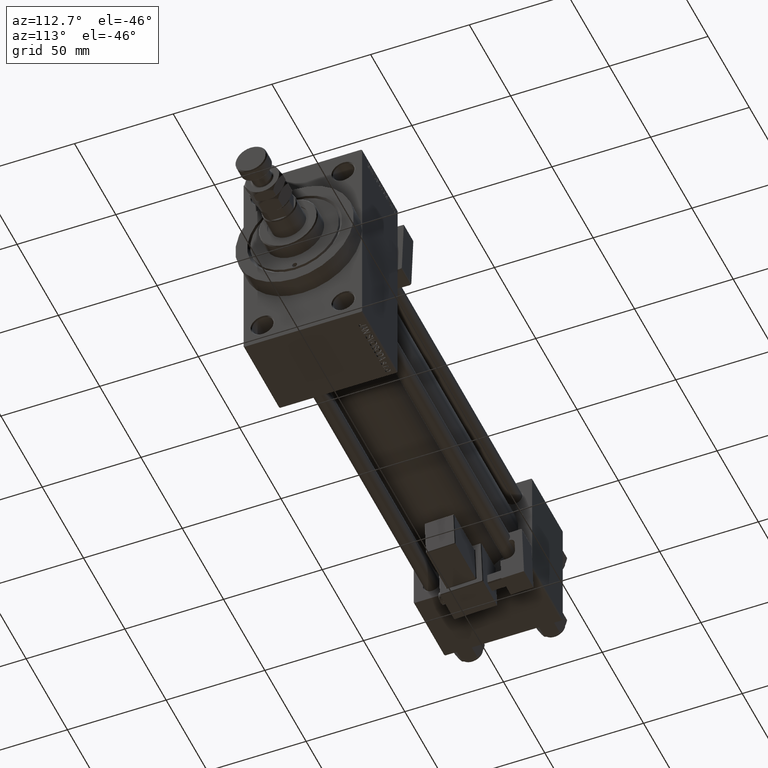
[diagram: clean part render]
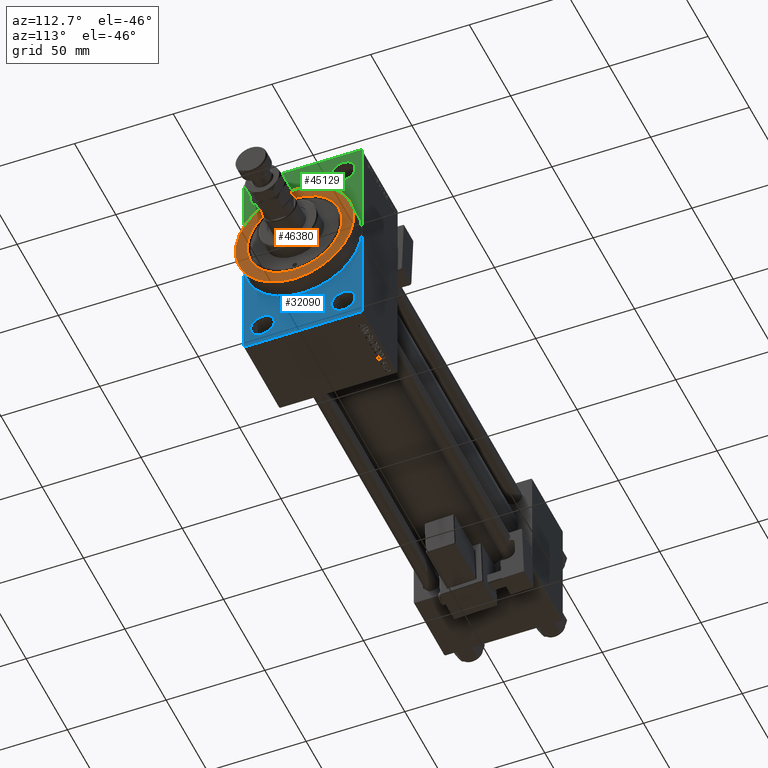
[diagram: same view with three faces highlighted in distinct colors, each labeled with its STEP entity id]
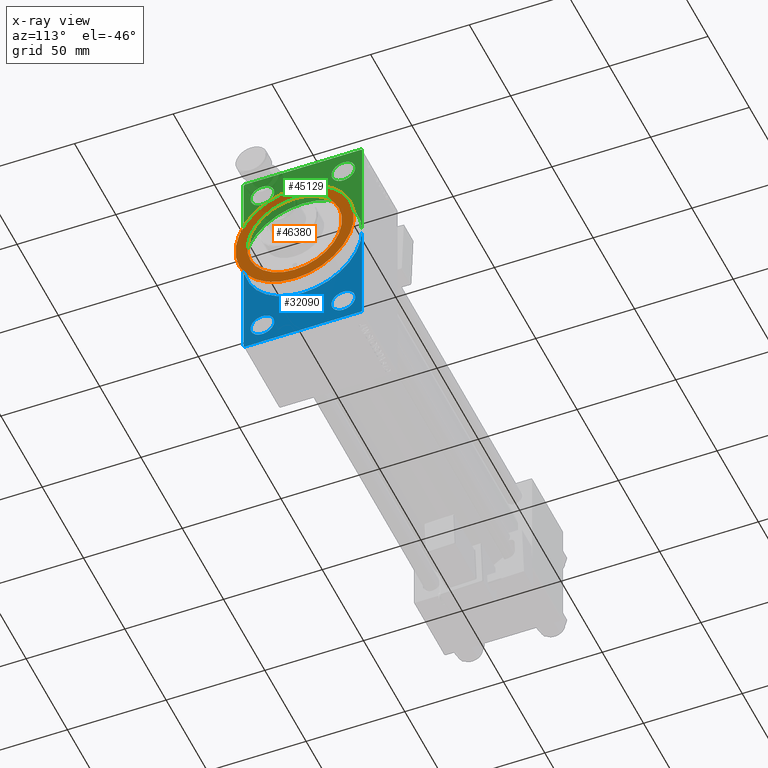
[diagram: x-ray of the same camera — body ghosted, the three highlighted faces saturated]
A machine part, auxiliary view with three faces highlighted in distinct colors.
The next image is the same camera in x-ray (body ghosted, the three faces saturated) — at least one of them is partly hidden behind the body in this view.
Their STEP definitions:

[orange] entity #46380 — the highlighted planar face has unit normal (1, 0, 0).
#2070 = EDGE_CURVE ( 'NONE', #44149, #40926, #28462, .T. ) ;
#2271 = DIRECTION ( 'NONE',  ( 0.000000000000000000, 0.000000000000000000, -1.000000000000000000 ) ) ;
#2431 = DIRECTION ( 'NONE',  ( 0.000000000000000000, 0.000000000000000000, -1.000000000000000000 ) ) ;
#3179 = EDGE_LOOP ( 'NONE', ( #40271, #48818 ) ) ;
#4772 = AXIS2_PLACEMENT_3D ( 'NONE', #18091, #14463, #2271 ) ;
#5529 = CARTESIAN_POINT ( 'NONE',  ( 253.0000000000000000, 0.000000000000000000, 0.000000000000000000 ) ) ;
#5621 = EDGE_LOOP ( 'NONE', ( #44473, #8622 ) ) ;
#6180 = CARTESIAN_POINT ( 'NONE',  ( 253.0000000000000000, 0.000000000000000000, 0.000000000000000000 ) ) ;
#6983 = DIRECTION ( 'NONE',  ( 0.000000000000000000, 0.000000000000000000, -1.000000000000000000 ) ) ;
#8622 = ORIENTED_EDGE ( 'NONE', *, *, #18252, .T. ) ;
#9804 = DIRECTION ( 'NONE',  ( 0.000000000000000000, 0.000000000000000000, -1.000000000000000000 ) ) ;
#10569 = VERTEX_POINT ( 'NONE', #45184 ) ;
#13196 = DIRECTION ( 'NONE',  ( -1.000000000000000000, -0.000000000000000000, -0.000000000000000000 ) ) ;
#14463 = DIRECTION ( 'NONE',  ( 1.000000000000000000, 0.000000000000000000, 0.000000000000000000 ) ) ;
#15248 = PLANE ( 'NONE',  #34950 ) ;
#18091 = CARTESIAN_POINT ( 'NONE',  ( 253.0000000000000000, 0.000000000000000000, 0.000000000000000000 ) ) ;
#18252 = EDGE_CURVE ( 'NONE', #40926, #44149, #21346, .T. ) ;
#21346 = CIRCLE ( 'NONE', #4772, 30.00000000000000000 ) ;
#21350 = DIRECTION ( 'NONE',  ( -1.000000000000000000, -0.000000000000000000, -0.000000000000000000 ) ) ;
#22545 = CARTESIAN_POINT ( 'NONE',  ( 253.0000000000000000, 2.939152317953647500E-15, 23.99999999999999645 ) ) ;
#23002 = CIRCLE ( 'NONE', #28016, 23.99999999999999645 ) ;
#25913 = VERTEX_POINT ( 'NONE', #22545 ) ;
#28016 = AXIS2_PLACEMENT_3D ( 'NONE', #6180, #13196, #9804 ) ;
#28462 = CIRCLE ( 'NONE', #50860, 30.00000000000000000 ) ;
#28712 = EDGE_CURVE ( 'NONE', #25913, #10569, #23002, .T. ) ;
#30822 = CARTESIAN_POINT ( 'NONE',  ( 253.0000000000000000, 0.000000000000000000, 0.000000000000000000 ) ) ;
#30970 = CIRCLE ( 'NONE', #46702, 23.99999999999999645 ) ;
#32616 = CARTESIAN_POINT ( 'NONE',  ( 253.0000000000000000, 3.673940397442059178E-15, -30.00000000000000000 ) ) ;
#32684 = CARTESIAN_POINT ( 'NONE',  ( 253.0000000000000000, 0.000000000000000000, 30.00000000000000000 ) ) ;
#34950 = AXIS2_PLACEMENT_3D ( 'NONE', #30822, #46638, #46898 ) ;
#39414 = DIRECTION ( 'NONE',  ( 1.000000000000000000, 0.000000000000000000, 0.000000000000000000 ) ) ;
#40271 = ORIENTED_EDGE ( 'NONE', *, *, #44648, .T. ) ;
#40926 = VERTEX_POINT ( 'NONE', #32616 ) ;
#43271 = FACE_OUTER_BOUND ( 'NONE', #5621, .T. ) ;
#44149 = VERTEX_POINT ( 'NONE', #32684 ) ;
#44473 = ORIENTED_EDGE ( 'NONE', *, *, #2070, .T. ) ;
#44648 = EDGE_CURVE ( 'NONE', #10569, #25913, #30970, .T. ) ;
#45184 = CARTESIAN_POINT ( 'NONE',  ( 253.0000000000000000, 0.000000000000000000, -23.99999999999999645 ) ) ;
#46380 = ADVANCED_FACE ( 'NONE', ( #50525, #43271 ), #15248, .T. ) ;
#46638 = DIRECTION ( 'NONE',  ( 1.000000000000000000, 0.000000000000000000, 0.000000000000000000 ) ) ;
#46702 = AXIS2_PLACEMENT_3D ( 'NONE', #5529, #21350, #2431 ) ;
#46898 = DIRECTION ( 'NONE',  ( 0.000000000000000000, 0.000000000000000000, -1.000000000000000000 ) ) ;
#48818 = ORIENTED_EDGE ( 'NONE', *, *, #28712, .T. ) ;
#50300 = CARTESIAN_POINT ( 'NONE',  ( 253.0000000000000000, 0.000000000000000000, 0.000000000000000000 ) ) ;
#50525 = FACE_BOUND ( 'NONE', #3179, .T. ) ;
#50860 = AXIS2_PLACEMENT_3D ( 'NONE', #50300, #39414, #6983 ) ;

[blue] entity #32090 — the highlighted planar face has unit normal (-1, 0, 0).
#3176 = ORIENTED_EDGE ( 'NONE', *, *, #40789, .F. ) ;
#3235 = VECTOR ( 'NONE', #35680, 1000.000000000000000 ) ;
#3703 = CARTESIAN_POINT ( 'NONE',  ( 243.0000000000000000, 0.000000000000000000, 0.000000000000000000 ) ) ;
#3942 = VERTEX_POINT ( 'NONE', #38401 ) ;
#4424 = DIRECTION ( 'NONE',  ( 0.000000000000000000, 0.000000000000000000, 1.000000000000000000 ) ) ;
#4716 = AXIS2_PLACEMENT_3D ( 'NONE', #45657, #45405, #41517 ) ;
#5320 = CARTESIAN_POINT ( 'NONE',  ( 243.0000000000000000, -20.50000000000000000, -37.50000000000002132 ) ) ;
#6324 = CIRCLE ( 'NONE', #4716, 5.999999999999977796 ) ;
#6365 = VERTEX_POINT ( 'NONE', #23299 ) ;
#6547 = VERTEX_POINT ( 'NONE', #26362 ) ;
#7387 = EDGE_CURVE ( 'NONE', #38080, #27889, #30003, .T. ) ;
#7749 = DIRECTION ( 'NONE',  ( 0.000000000000000000, 0.000000000000000000, -1.000000000000000000 ) ) ;
#8518 = AXIS2_PLACEMENT_3D ( 'NONE', #50599, #30904, #47481 ) ;
#8886 = AXIS2_PLACEMENT_3D ( 'NONE', #20493, #23376, #4424 ) ;
#10239 = ORIENTED_EDGE ( 'NONE', *, *, #24757, .F. ) ;
#10284 = CARTESIAN_POINT ( 'NONE',  ( 243.0000000000000000, -30.00000000000000000, 54.50000000000000000 ) ) ;
#10581 = VECTOR ( 'NONE', #39925, 1000.000000000000000 ) ;
#11343 = VERTEX_POINT ( 'NONE', #32755 ) ;
#12482 = DIRECTION ( 'NONE',  ( -1.000000000000000000, 0.000000000000000000, -0.000000000000000000 ) ) ;
#12542 = EDGE_CURVE ( 'NONE', #14710, #3942, #6324, .T. ) ;
#14216 = CARTESIAN_POINT ( 'NONE',  ( 243.0000000000000000, -30.00000000000000000, -54.00000000000001421 ) ) ;
#14355 = ORIENTED_EDGE ( 'NONE', *, *, #12542, .T. ) ;
#14602 = DIRECTION ( 'NONE',  ( 1.000000000000000000, 0.000000000000000000, 0.000000000000000000 ) ) ;
#14710 = VERTEX_POINT ( 'NONE', #5320 ) ;
#15532 = VECTOR ( 'NONE', #46567, 1000.000000000000000 ) ;
#17776 = VERTEX_POINT ( 'NONE', #28059 ) ;
#18230 = EDGE_CURVE ( 'NONE', #27889, #17776, #44561, .T. ) ;
#18789 = ORIENTED_EDGE ( 'NONE', *, *, #39631, .T. ) ;
#19069 = VECTOR ( 'NONE', #25336, 1000.000000000000000 ) ;
#19108 = CARTESIAN_POINT ( 'NONE',  ( 243.0000000000000000, 20.50000000000000000, -43.50000000000000000 ) ) ;
#19828 = EDGE_CURVE ( 'NONE', #42784, #6365, #27659, .T. ) ;
#20347 = CARTESIAN_POINT ( 'NONE',  ( 243.0000000000000000, -30.00000000000000000, 0.000000000000000000 ) ) ;
#20493 = CARTESIAN_POINT ( 'NONE',  ( 243.0000000000000000, 20.50000000000000000, -43.50000000000000000 ) ) ;
#23299 = CARTESIAN_POINT ( 'NONE',  ( 243.0000000000000000, 29.99999999999999645, -53.99999999999999289 ) ) ;
#23376 = DIRECTION ( 'NONE',  ( -1.000000000000000000, 0.000000000000000000, -0.000000000000000000 ) ) ;
#24265 = EDGE_CURVE ( 'NONE', #46471, #42784, #32094, .T. ) ;
#24757 = EDGE_CURVE ( 'NONE', #11343, #17776, #34386, .T. ) ;
#24850 = CARTESIAN_POINT ( 'NONE',  ( 243.0000000000000000, 20.50000000000000000, -49.49999999999997158 ) ) ;
#24983 = EDGE_CURVE ( 'NONE', #6547, #32526, #42909, .T. ) ;
#25081 = CARTESIAN_POINT ( 'NONE',  ( 243.0000000000000000, 29.99999999999999645, -53.99999999999999289 ) ) ;
#25336 = DIRECTION ( 'NONE',  ( -0.000000000000000000, 0.7071067811865672237, 0.7071067811865279218 ) ) ;
#25830 = AXIS2_PLACEMENT_3D ( 'NONE', #47178, #43294, #7749 ) ;
#26118 = DIRECTION ( 'NONE',  ( 0.000000000000000000, 0.000000000000000000, -1.000000000000000000 ) ) ;
#26362 = CARTESIAN_POINT ( 'NONE',  ( 243.0000000000000000, 20.50000000000000000, -37.50000000000002132 ) ) ;
#27309 = FACE_BOUND ( 'NONE', #37346, .T. ) ;
#27343 = ORIENTED_EDGE ( 'NONE', *, *, #24265, .F. ) ;
#27419 = AXIS2_PLACEMENT_3D ( 'NONE', #19108, #43245, #34937 ) ;
#27659 = LINE ( 'NONE', #42710, #3235 ) ;
#27721 = VECTOR ( 'NONE', #26118, 1000.000000000000000 ) ;
#27889 = VERTEX_POINT ( 'NONE', #14216 ) ;
#28059 = CARTESIAN_POINT ( 'NONE',  ( 243.0000000000000000, -29.50000000000002842, -54.50000000000000000 ) ) ;
#30003 = LINE ( 'NONE', #10284, #27721 ) ;
#30904 = DIRECTION ( 'NONE',  ( -1.000000000000000000, 0.000000000000000000, -0.000000000000000000 ) ) ;
#30951 = DIRECTION ( 'NONE',  ( 0.000000000000000000, 0.000000000000000000, -1.000000000000000000 ) ) ;
#32090 = ADVANCED_FACE ( 'NONE', ( #35341, #27309, #39493 ), #39994, .F. ) ;
#32094 = CIRCLE ( 'NONE', #49472, 30.00000000000000000 ) ;
#32214 = DIRECTION ( 'NONE',  ( -0.000000000000000000, 0.000000000000000000, 1.000000000000000000 ) ) ;
#32526 = VERTEX_POINT ( 'NONE', #24850 ) ;
#32736 = ORIENTED_EDGE ( 'NONE', *, *, #33490, .T. ) ;
#32755 = CARTESIAN_POINT ( 'NONE',  ( 243.0000000000000000, 29.49999999999996803, -54.49999999999999289 ) ) ;
#33490 = EDGE_CURVE ( 'NONE', #11343, #6365, #49713, .T. ) ;
#34386 = LINE ( 'NONE', #46316, #15532 ) ;
#34409 = ORIENTED_EDGE ( 'NONE', *, *, #24983, .T. ) ;
#34417 = EDGE_CURVE ( 'NONE', #32526, #6547, #37315, .T. ) ;
#34937 = DIRECTION ( 'NONE',  ( 0.000000000000000000, 0.000000000000000000, 1.000000000000000000 ) ) ;
#35058 = EDGE_LOOP ( 'NONE', ( #37866, #42548, #10239, #32736, #40106, #27343, #3176 ) ) ;
#35341 = FACE_BOUND ( 'NONE', #40774, .T. ) ;
#35567 = AXIS2_PLACEMENT_3D ( 'NONE', #3703, #12482, #32214 ) ;
#35680 = DIRECTION ( 'NONE',  ( 0.000000000000000000, 0.000000000000000000, -1.000000000000000000 ) ) ;
#36277 = CARTESIAN_POINT ( 'NONE',  ( 243.0000000000000000, -29.50000000000002842, -54.50000000000000000 ) ) ;
#36576 = CIRCLE ( 'NONE', #25830, 30.00000000000000000 ) ;
#37315 = CIRCLE ( 'NONE', #27419, 5.999999999999977796 ) ;
#37346 = EDGE_LOOP ( 'NONE', ( #39724, #34409 ) ) ;
#37866 = ORIENTED_EDGE ( 'NONE', *, *, #7387, .T. ) ;
#38080 = VERTEX_POINT ( 'NONE', #20347 ) ;
#38401 = CARTESIAN_POINT ( 'NONE',  ( 243.0000000000000000, -20.50000000000000000, -49.49999999999997158 ) ) ;
#39493 = FACE_OUTER_BOUND ( 'NONE', #35058, .T. ) ;
#39631 = EDGE_CURVE ( 'NONE', #3942, #14710, #49941, .T. ) ;
#39724 = ORIENTED_EDGE ( 'NONE', *, *, #34417, .T. ) ;
#39925 = DIRECTION ( 'NONE',  ( 0.000000000000000000, 0.7071067811865352493, -0.7071067811865597852 ) ) ;
#39994 = PLANE ( 'NONE',  #35567 ) ;
#40106 = ORIENTED_EDGE ( 'NONE', *, *, #19828, .F. ) ;
#40774 = EDGE_LOOP ( 'NONE', ( #18789, #14355 ) ) ;
#40789 = EDGE_CURVE ( 'NONE', #38080, #46471, #36576, .T. ) ;
#41517 = DIRECTION ( 'NONE',  ( 0.000000000000000000, 0.000000000000000000, 1.000000000000000000 ) ) ;
#42548 = ORIENTED_EDGE ( 'NONE', *, *, #18230, .T. ) ;
#42710 = CARTESIAN_POINT ( 'NONE',  ( 243.0000000000000000, 29.99999999999999645, 54.49999999999999289 ) ) ;
#42784 = VERTEX_POINT ( 'NONE', #51183 ) ;
#42909 = CIRCLE ( 'NONE', #8886, 5.999999999999977796 ) ;
#43245 = DIRECTION ( 'NONE',  ( -1.000000000000000000, 0.000000000000000000, -0.000000000000000000 ) ) ;
#43294 = DIRECTION ( 'NONE',  ( 1.000000000000000000, 0.000000000000000000, 0.000000000000000000 ) ) ;
#44561 = LINE ( 'NONE', #36277, #10581 ) ;
#44769 = CARTESIAN_POINT ( 'NONE',  ( 243.0000000000000000, 3.673940397442059178E-15, -30.00000000000000000 ) ) ;
#45405 = DIRECTION ( 'NONE',  ( -1.000000000000000000, 0.000000000000000000, -0.000000000000000000 ) ) ;
#45657 = CARTESIAN_POINT ( 'NONE',  ( 243.0000000000000000, -20.50000000000000000, -43.50000000000000000 ) ) ;
#46316 = CARTESIAN_POINT ( 'NONE',  ( 243.0000000000000000, 29.99999999999999645, -54.49999999999999289 ) ) ;
#46471 = VERTEX_POINT ( 'NONE', #44769 ) ;
#46567 = DIRECTION ( 'NONE',  ( 0.000000000000000000, -1.000000000000000000, -1.156482317317871478E-16 ) ) ;
#47178 = CARTESIAN_POINT ( 'NONE',  ( 243.0000000000000000, 0.000000000000000000, 0.000000000000000000 ) ) ;
#47481 = DIRECTION ( 'NONE',  ( 0.000000000000000000, 0.000000000000000000, 1.000000000000000000 ) ) ;
#49472 = AXIS2_PLACEMENT_3D ( 'NONE', #50389, #14602, #30951 ) ;
#49713 = LINE ( 'NONE', #25081, #19069 ) ;
#49941 = CIRCLE ( 'NONE', #8518, 5.999999999999977796 ) ;
#50389 = CARTESIAN_POINT ( 'NONE',  ( 243.0000000000000000, 0.000000000000000000, 0.000000000000000000 ) ) ;
#50599 = CARTESIAN_POINT ( 'NONE',  ( 243.0000000000000000, -20.50000000000000000, -43.50000000000000000 ) ) ;
#51183 = CARTESIAN_POINT ( 'NONE',  ( 243.0000000000000000, 30.00000000000000000, 0.000000000000000000 ) ) ;

[green] entity #45129 — the highlighted planar face has unit normal (-1, 0, 0).
#513 = EDGE_CURVE ( 'NONE', #13989, #50553, #25892, .T. ) ;
#1016 = VECTOR ( 'NONE', #38256, 1000.000000000000114 ) ;
#1076 = AXIS2_PLACEMENT_3D ( 'NONE', #6579, #2696, #18516 ) ;
#1244 = DIRECTION ( 'NONE',  ( 0.000000000000000000, 0.000000000000000000, 1.000000000000000000 ) ) ;
#2270 = DIRECTION ( 'NONE',  ( -1.000000000000000000, 0.000000000000000000, -0.000000000000000000 ) ) ;
#2694 = LINE ( 'NONE', #42646, #38552 ) ;
#2696 = DIRECTION ( 'NONE',  ( -1.000000000000000000, 0.000000000000000000, -0.000000000000000000 ) ) ;
#4460 = CARTESIAN_POINT ( 'NONE',  ( 243.0000000000000000, -30.00000000000000000, 54.50000000000000000 ) ) ;
#4694 = DIRECTION ( 'NONE',  ( 0.000000000000000000, 0.000000000000000000, 1.000000000000000000 ) ) ;
#5493 = ORIENTED_EDGE ( 'NONE', *, *, #9230, .F. ) ;
#5779 = EDGE_CURVE ( 'NONE', #39953, #30961, #44179, .T. ) ;
#6579 = CARTESIAN_POINT ( 'NONE',  ( 243.0000000000000000, -20.50000000000000000, 43.50000000000000000 ) ) ;
#6769 = CARTESIAN_POINT ( 'NONE',  ( 243.0000000000000000, 20.50000000000000000, 43.50000000000000000 ) ) ;
#8634 = ORIENTED_EDGE ( 'NONE', *, *, #40075, .T. ) ;
#8915 = VERTEX_POINT ( 'NONE', #21939 ) ;
#8925 = CARTESIAN_POINT ( 'NONE',  ( 243.0000000000000000, 0.000000000000000000, 0.000000000000000000 ) ) ;
#9230 = EDGE_CURVE ( 'NONE', #42784, #50898, #32737, .T. ) ;
#9409 = EDGE_CURVE ( 'NONE', #8915, #42784, #2694, .T. ) ;
#9802 = EDGE_LOOP ( 'NONE', ( #24131, #26249, #17229, #17983, #5493, #47512, #45438 ) ) ;
#11234 = CIRCLE ( 'NONE', #14570, 5.999999999999977796 ) ;
#11642 = DIRECTION ( 'NONE',  ( 0.000000000000000000, -1.000000000000000000, 1.156482317317871478E-16 ) ) ;
#12742 = DIRECTION ( 'NONE',  ( -1.000000000000000000, 0.000000000000000000, -0.000000000000000000 ) ) ;
#13989 = VERTEX_POINT ( 'NONE', #21627 ) ;
#14440 = CARTESIAN_POINT ( 'NONE',  ( 243.0000000000000000, -29.50000000000000355, 54.50000000000000000 ) ) ;
#14526 = EDGE_CURVE ( 'NONE', #50898, #38080, #23818, .T. ) ;
#14570 = AXIS2_PLACEMENT_3D ( 'NONE', #37544, #2270, #1244 ) ;
#15148 = CIRCLE ( 'NONE', #1076, 5.999999999999977796 ) ;
#15843 = EDGE_LOOP ( 'NONE', ( #35519, #39420 ) ) ;
#16886 = CARTESIAN_POINT ( 'NONE',  ( 243.0000000000000000, 0.000000000000000000, 0.000000000000000000 ) ) ;
#17229 = ORIENTED_EDGE ( 'NONE', *, *, #33002, .T. ) ;
#17983 = ORIENTED_EDGE ( 'NONE', *, *, #14526, .F. ) ;
#18516 = DIRECTION ( 'NONE',  ( 0.000000000000000000, 0.000000000000000000, 1.000000000000000000 ) ) ;
#18707 = EDGE_CURVE ( 'NONE', #8915, #46360, #30421, .T. ) ;
#18799 = CARTESIAN_POINT ( 'NONE',  ( 243.0000000000000000, -30.00000000000000000, 54.00000000000002842 ) ) ;
#19682 = VERTEX_POINT ( 'NONE', #42194 ) ;
#19690 = LINE ( 'NONE', #47192, #42948 ) ;
#20026 = LINE ( 'NONE', #4460, #36436 ) ;
#20282 = DIRECTION ( 'NONE',  ( 0.000000000000000000, 0.000000000000000000, -1.000000000000000000 ) ) ;
#20347 = CARTESIAN_POINT ( 'NONE',  ( 243.0000000000000000, -30.00000000000000000, 0.000000000000000000 ) ) ;
#20526 = FACE_BOUND ( 'NONE', #15843, .T. ) ;
#21361 = CARTESIAN_POINT ( 'NONE',  ( 243.0000000000000000, 20.50000000000000000, 49.49999999999997158 ) ) ;
#21616 = EDGE_CURVE ( 'NONE', #30961, #39953, #11234, .T. ) ;
#21627 = CARTESIAN_POINT ( 'NONE',  ( 243.0000000000000000, -20.50000000000000000, 37.50000000000002132 ) ) ;
#21808 = AXIS2_PLACEMENT_3D ( 'NONE', #6769, #35305, #30907 ) ;
#21939 = CARTESIAN_POINT ( 'NONE',  ( 243.0000000000000000, 29.99999999999999645, 53.99999999999996447 ) ) ;
#21962 = DIRECTION ( 'NONE',  ( 0.000000000000000000, 0.000000000000000000, -1.000000000000000000 ) ) ;
#22913 = DIRECTION ( 'NONE',  ( 0.000000000000000000, 0.000000000000000000, -1.000000000000000000 ) ) ;
#23818 = CIRCLE ( 'NONE', #29624, 30.00000000000000000 ) ;
#24131 = ORIENTED_EDGE ( 'NONE', *, *, #26046, .T. ) ;
#24406 = CARTESIAN_POINT ( 'NONE',  ( 243.0000000000000000, -20.50000000000000000, 43.50000000000000000 ) ) ;
#25892 = CIRCLE ( 'NONE', #30047, 5.999999999999977796 ) ;
#26046 = EDGE_CURVE ( 'NONE', #46360, #30494, #19690, .T. ) ;
#26249 = ORIENTED_EDGE ( 'NONE', *, *, #47276, .T. ) ;
#26326 = LINE ( 'NONE', #18799, #1016 ) ;
#28578 = DIRECTION ( 'NONE',  ( -0.000000000000000000, 0.000000000000000000, 1.000000000000000000 ) ) ;
#29624 = AXIS2_PLACEMENT_3D ( 'NONE', #50230, #33386, #21962 ) ;
#30047 = AXIS2_PLACEMENT_3D ( 'NONE', #24406, #40233, #4694 ) ;
#30421 = LINE ( 'NONE', #38468, #50356 ) ;
#30494 = VERTEX_POINT ( 'NONE', #14440 ) ;
#30907 = DIRECTION ( 'NONE',  ( 0.000000000000000000, 0.000000000000000000, 1.000000000000000000 ) ) ;
#30961 = VERTEX_POINT ( 'NONE', #40540 ) ;
#31340 = CARTESIAN_POINT ( 'NONE',  ( 243.0000000000000000, 29.49999999999999645, 54.49999999999999289 ) ) ;
#32737 = CIRCLE ( 'NONE', #45999, 30.00000000000000000 ) ;
#33002 = EDGE_CURVE ( 'NONE', #19682, #38080, #20026, .T. ) ;
#33004 = EDGE_LOOP ( 'NONE', ( #37405, #8634 ) ) ;
#33216 = FACE_BOUND ( 'NONE', #33004, .T. ) ;
#33300 = DIRECTION ( 'NONE',  ( 0.000000000000000000, 0.000000000000000000, -1.000000000000000000 ) ) ;
#33386 = DIRECTION ( 'NONE',  ( 1.000000000000000000, 0.000000000000000000, 0.000000000000000000 ) ) ;
#34319 = DIRECTION ( 'NONE',  ( 0.000000000000000000, -0.7071067811865279218, 0.7071067811865672237 ) ) ;
#34413 = CARTESIAN_POINT ( 'NONE',  ( 243.0000000000000000, 0.000000000000000000, 30.00000000000000000 ) ) ;
#35305 = DIRECTION ( 'NONE',  ( -1.000000000000000000, 0.000000000000000000, -0.000000000000000000 ) ) ;
#35519 = ORIENTED_EDGE ( 'NONE', *, *, #21616, .T. ) ;
#36436 = VECTOR ( 'NONE', #20282, 1000.000000000000000 ) ;
#36858 = FACE_OUTER_BOUND ( 'NONE', #9802, .T. ) ;
#37111 = PLANE ( 'NONE',  #50972 ) ;
#37405 = ORIENTED_EDGE ( 'NONE', *, *, #513, .T. ) ;
#37544 = CARTESIAN_POINT ( 'NONE',  ( 243.0000000000000000, 20.50000000000000000, 43.50000000000000000 ) ) ;
#38080 = VERTEX_POINT ( 'NONE', #20347 ) ;
#38256 = DIRECTION ( 'NONE',  ( -0.000000000000000000, -0.7071067811865647812, -0.7071067811865302533 ) ) ;
#38468 = CARTESIAN_POINT ( 'NONE',  ( 243.0000000000000000, 29.49999999999999645, 54.49999999999999289 ) ) ;
#38552 = VECTOR ( 'NONE', #22913, 1000.000000000000000 ) ;
#39420 = ORIENTED_EDGE ( 'NONE', *, *, #5779, .T. ) ;
#39953 = VERTEX_POINT ( 'NONE', #21361 ) ;
#40075 = EDGE_CURVE ( 'NONE', #50553, #13989, #15148, .T. ) ;
#40233 = DIRECTION ( 'NONE',  ( -1.000000000000000000, 0.000000000000000000, -0.000000000000000000 ) ) ;
#40540 = CARTESIAN_POINT ( 'NONE',  ( 243.0000000000000000, 20.50000000000000000, 37.50000000000002132 ) ) ;
#42194 = CARTESIAN_POINT ( 'NONE',  ( 243.0000000000000000, -30.00000000000000000, 54.00000000000002842 ) ) ;
#42646 = CARTESIAN_POINT ( 'NONE',  ( 243.0000000000000000, 29.99999999999999645, 54.49999999999999289 ) ) ;
#42784 = VERTEX_POINT ( 'NONE', #51183 ) ;
#42948 = VECTOR ( 'NONE', #11642, 1000.000000000000000 ) ;
#44179 = CIRCLE ( 'NONE', #21808, 5.999999999999977796 ) ;
#45129 = ADVANCED_FACE ( 'NONE', ( #33216, #20526, #36858 ), #37111, .F. ) ;
#45438 = ORIENTED_EDGE ( 'NONE', *, *, #18707, .T. ) ;
#45494 = DIRECTION ( 'NONE',  ( 1.000000000000000000, 0.000000000000000000, 0.000000000000000000 ) ) ;
#45999 = AXIS2_PLACEMENT_3D ( 'NONE', #8925, #45494, #33300 ) ;
#46360 = VERTEX_POINT ( 'NONE', #31340 ) ;
#47192 = CARTESIAN_POINT ( 'NONE',  ( 243.0000000000000000, 29.99999999999999645, 54.49999999999999289 ) ) ;
#47276 = EDGE_CURVE ( 'NONE', #30494, #19682, #26326, .T. ) ;
#47512 = ORIENTED_EDGE ( 'NONE', *, *, #9409, .F. ) ;
#49260 = CARTESIAN_POINT ( 'NONE',  ( 243.0000000000000000, -20.50000000000000000, 49.49999999999997158 ) ) ;
#50230 = CARTESIAN_POINT ( 'NONE',  ( 243.0000000000000000, 0.000000000000000000, 0.000000000000000000 ) ) ;
#50356 = VECTOR ( 'NONE', #34319, 1000.000000000000000 ) ;
#50553 = VERTEX_POINT ( 'NONE', #49260 ) ;
#50898 = VERTEX_POINT ( 'NONE', #34413 ) ;
#50972 = AXIS2_PLACEMENT_3D ( 'NONE', #16886, #12742, #28578 ) ;
#51183 = CARTESIAN_POINT ( 'NONE',  ( 243.0000000000000000, 30.00000000000000000, 0.000000000000000000 ) ) ;